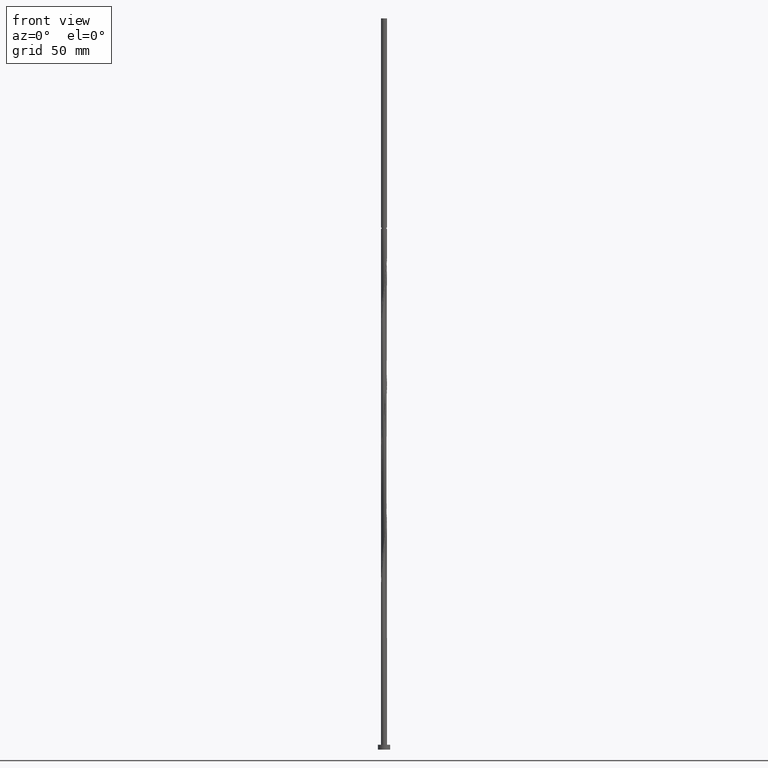
[diagram: clean part render]
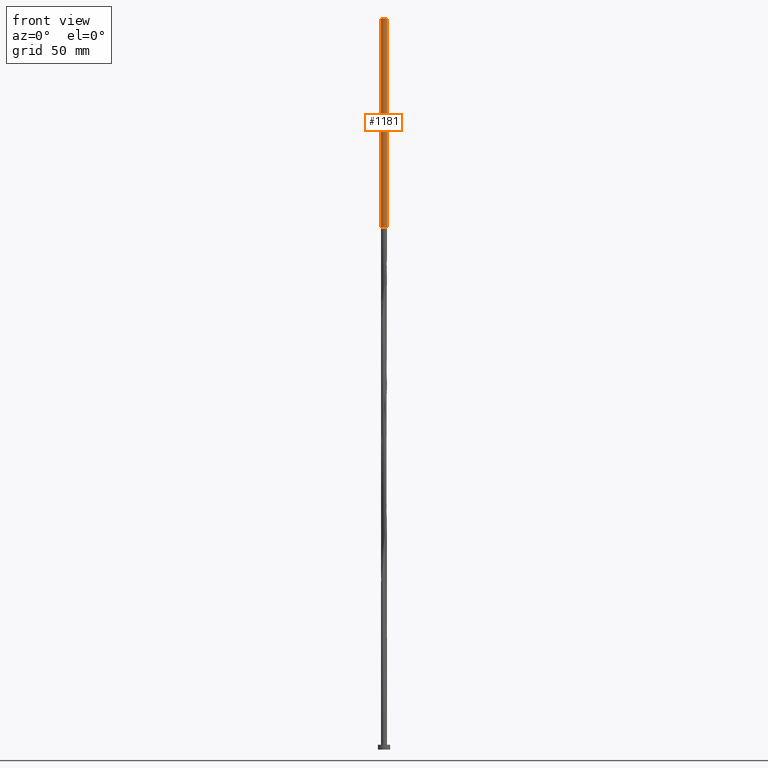
[diagram: same view with one face highlighted and labeled with its STEP entity id]
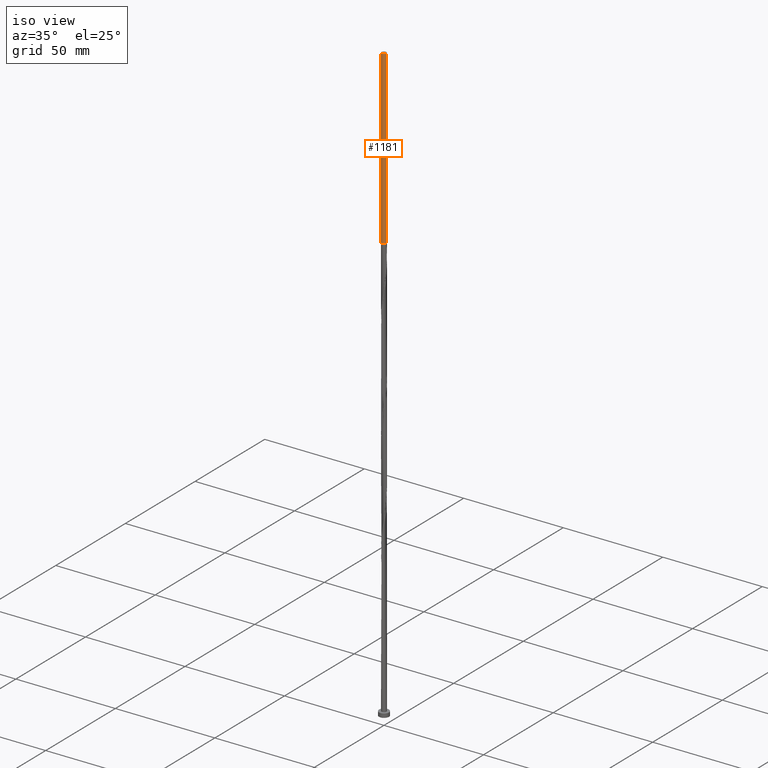
[diagram: same view with one face highlighted and labeled with its STEP entity id]
A machine part, front view. The second image highlights one B-rep face of the part: STEP entity #1181.
A second angle (iso view) of the same face is appended — the face is thin or edge-on in the first view.
In plain terms, the highlighted cylindrical surface (edge-blend (fillet) strip) has radius 1.25 mm, axis along (-0, -0, -1).
Its self-contained STEP definition (entity closure, byte-faithful):
#37 = CARTESIAN_POINT ( 'NONE',  ( -1.249999999999985789, 0.000000000000000000, 214.8683331352045229 ) ) ;
#50 = LINE ( 'NONE', #476, #146 ) ;
#78 = EDGE_CURVE ( 'NONE', #1383, #1068, #1083, .T. ) ;
#107 = ORIENTED_EDGE ( 'NONE', *, *, #196, .F. ) ;
#114 = CARTESIAN_POINT ( 'NONE',  ( 0.000000000000000000, 0.000000000000000000, 214.8683331352045229 ) ) ;
#146 = VECTOR ( 'NONE', #607, 1000.000000000000000 ) ;
#196 = EDGE_CURVE ( 'NONE', #777, #1383, #232, .T. ) ;
#220 = ORIENTED_EDGE ( 'NONE', *, *, #78, .F. ) ;
#232 = LINE ( 'NONE', #1087, #882 ) ;
#241 = DIRECTION ( 'NONE',  ( -0.000000000000000000, -0.000000000000000000, -1.000000000000000000 ) ) ;
#249 = DIRECTION ( 'NONE',  ( -1.000000000000000000, 0.000000000000000000, 0.000000000000000000 ) ) ;
#258 = CARTESIAN_POINT ( 'NONE',  ( 1.249999999999985789, 1.530808498934182696E-16, 214.8683331352045229 ) ) ;
#260 = DIRECTION ( 'NONE',  ( -1.000000000000000000, 0.000000000000000000, 0.000000000000000000 ) ) ;
#292 = AXIS2_PLACEMENT_3D ( 'NONE', #114, #241, #260 ) ;
#358 = DIRECTION ( 'NONE',  ( -0.000000000000000000, -0.000000000000000000, -1.000000000000000000 ) ) ;
#436 = AXIS2_PLACEMENT_3D ( 'NONE', #1627, #1617, #1479 ) ;
#476 = CARTESIAN_POINT ( 'NONE',  ( -1.250000000000000000, 0.000000000000000000, 301.0000000000000000 ) ) ;
#506 = EDGE_LOOP ( 'NONE', ( #107, #1074, #1782, #220 ) ) ;
#607 = DIRECTION ( 'NONE',  ( -0.000000000000000000, -0.000000000000000000, -1.000000000000000000 ) ) ;
#662 = CARTESIAN_POINT ( 'NONE',  ( 0.000000000000000000, 0.000000000000000000, 301.0000000000000000 ) ) ;
#777 = VERTEX_POINT ( 'NONE', #1663 ) ;
#806 = FACE_OUTER_BOUND ( 'NONE', #506, .T. ) ;
#882 = VECTOR ( 'NONE', #1237, 1000.000000000000000 ) ;
#928 = AXIS2_PLACEMENT_3D ( 'NONE', #662, #358, #249 ) ;
#1068 = VERTEX_POINT ( 'NONE', #37 ) ;
#1074 = ORIENTED_EDGE ( 'NONE', *, *, #1173, .F. ) ;
#1083 = CIRCLE ( 'NONE', #292, 1.249999999999985789 ) ;
#1087 = CARTESIAN_POINT ( 'NONE',  ( 1.250000000000000000, 1.530808498934191571E-16, 301.0000000000000000 ) ) ;
#1173 = EDGE_CURVE ( 'NONE', #1208, #777, #1400, .T. ) ;
#1181 = ADVANCED_FACE ( 'NONE', ( #806 ), #1608, .T. ) ;
#1199 = CARTESIAN_POINT ( 'NONE',  ( -1.250000000000000000, 0.000000000000000000, 301.0000000000000000 ) ) ;
#1208 = VERTEX_POINT ( 'NONE', #1199 ) ;
#1237 = DIRECTION ( 'NONE',  ( -0.000000000000000000, -0.000000000000000000, -1.000000000000000000 ) ) ;
#1383 = VERTEX_POINT ( 'NONE', #258 ) ;
#1400 = CIRCLE ( 'NONE', #436, 1.250000000000000000 ) ;
#1479 = DIRECTION ( 'NONE',  ( 1.000000000000000000, 0.000000000000000000, 0.000000000000000000 ) ) ;
#1571 = EDGE_CURVE ( 'NONE', #1208, #1068, #50, .T. ) ;
#1608 = CYLINDRICAL_SURFACE ( 'NONE', #928, 1.250000000000000000 ) ;
#1617 = DIRECTION ( 'NONE',  ( 0.000000000000000000, 0.000000000000000000, 1.000000000000000000 ) ) ;
#1627 = CARTESIAN_POINT ( 'NONE',  ( 0.000000000000000000, 0.000000000000000000, 301.0000000000000000 ) ) ;
#1663 = CARTESIAN_POINT ( 'NONE',  ( 1.250000000000000000, 1.530808498934191571E-16, 301.0000000000000000 ) ) ;
#1782 = ORIENTED_EDGE ( 'NONE', *, *, #1571, .T. ) ;